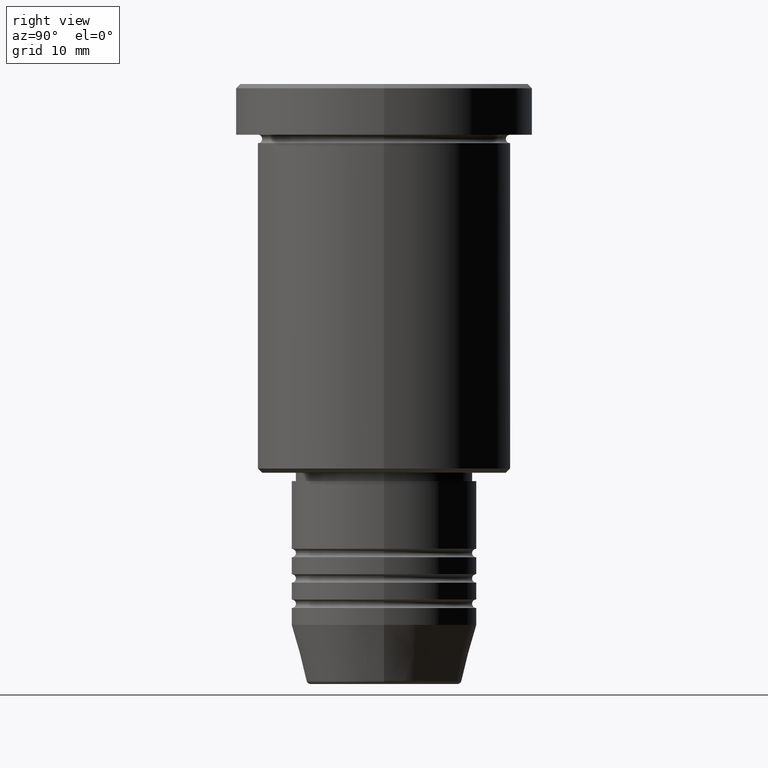
[diagram: clean part render]
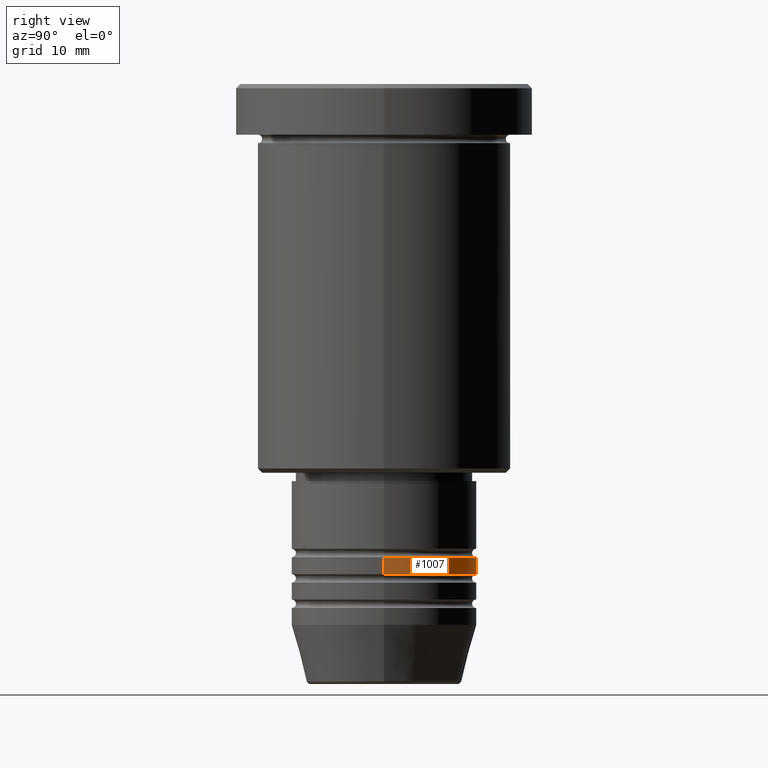
[diagram: same view with one face highlighted and labeled with its STEP entity id]
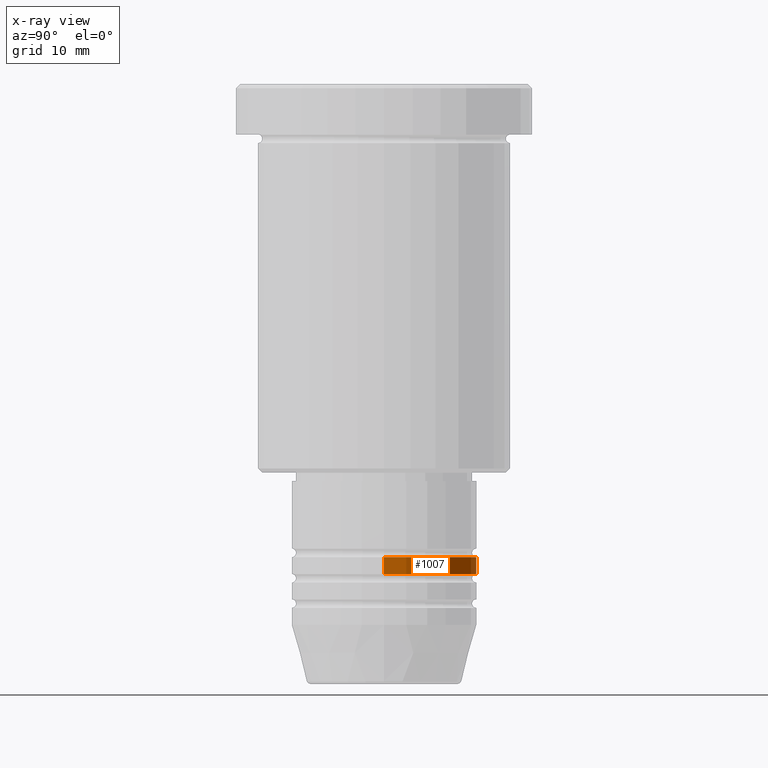
[diagram: x-ray of the same camera — body ghosted, the highlighted face saturated]
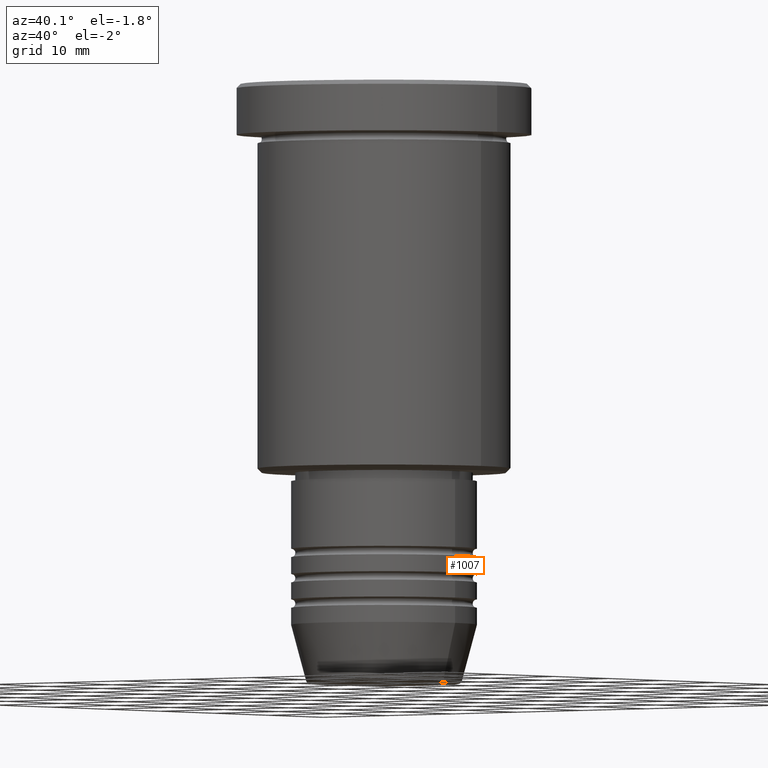
[diagram: same view with one face highlighted and labeled with its STEP entity id]
A machine part, right view. The second image highlights one B-rep face of the part: STEP entity #1007.
The next image is the same camera in x-ray: the body ghosted, the highlighted face saturated — about 0% of this face is hidden behind the body in this view.
A second angle (auxiliary view) of the same face is appended — the face is thin or edge-on in the first view.
In plain terms, the highlighted cylindrical surface (partial cylindrical patch) has radius 11 mm, axis along (-0, -0, 1).
Its self-contained STEP definition (entity closure, byte-faithful):
#42 = VERTEX_POINT ( 'NONE', #1144 ) ;
#68 = AXIS2_PLACEMENT_3D ( 'NONE', #437, #1069, #821 ) ;
#79 = EDGE_CURVE ( 'NONE', #772, #42, #1151, .T. ) ;
#81 = CARTESIAN_POINT ( 'NONE',  ( 0.000000000000000000, 0.000000000000000000, -55.99999999999997868 ) ) ;
#95 = DIRECTION ( 'NONE',  ( -0.000000000000000000, -0.000000000000000000, 1.000000000000000000 ) ) ;
#145 = ORIENTED_EDGE ( 'NONE', *, *, #899, .F. ) ;
#172 = CARTESIAN_POINT ( 'NONE',  ( 0.000000000000000000, 0.000000000000000000, 0.000000000000000000 ) ) ;
#291 = AXIS2_PLACEMENT_3D ( 'NONE', #172, #359, #1179 ) ;
#304 = CARTESIAN_POINT ( 'NONE',  ( 11.00000000000000000, 0.000000000000000000, -57.99999999999997868 ) ) ;
#352 = CIRCLE ( 'NONE', #812, 11.00000000000000000 ) ;
#359 = DIRECTION ( 'NONE',  ( -0.000000000000000000, -0.000000000000000000, 1.000000000000000000 ) ) ;
#401 = CARTESIAN_POINT ( 'NONE',  ( -11.00000000000000000, 1.347111479062088405E-15, -55.99999999999997868 ) ) ;
#437 = CARTESIAN_POINT ( 'NONE',  ( 0.000000000000000000, 0.000000000000000000, -57.99999999999997868 ) ) ;
#448 = VECTOR ( 'NONE', #95, 1000.000000000000000 ) ;
#459 = EDGE_CURVE ( 'NONE', #772, #922, #480, .T. ) ;
#480 = CIRCLE ( 'NONE', #68, 11.00000000000000000 ) ;
#487 = ORIENTED_EDGE ( 'NONE', *, *, #540, .T. ) ;
#537 = DIRECTION ( 'NONE',  ( 1.000000000000000000, 0.000000000000000000, 0.000000000000000000 ) ) ;
#540 = EDGE_CURVE ( 'NONE', #922, #728, #1180, .T. ) ;
#611 = EDGE_LOOP ( 'NONE', ( #949, #487, #145, #1110 ) ) ;
#629 = FACE_OUTER_BOUND ( 'NONE', #611, .T. ) ;
#728 = VERTEX_POINT ( 'NONE', #401 ) ;
#772 = VERTEX_POINT ( 'NONE', #304 ) ;
#812 = AXIS2_PLACEMENT_3D ( 'NONE', #81, #1080, #537 ) ;
#815 = CYLINDRICAL_SURFACE ( 'NONE', #291, 11.00000000000000000 ) ;
#821 = DIRECTION ( 'NONE',  ( 1.000000000000000000, 0.000000000000000000, 0.000000000000000000 ) ) ;
#824 = VECTOR ( 'NONE', #975, 1000.000000000000000 ) ;
#899 = EDGE_CURVE ( 'NONE', #42, #728, #352, .T. ) ;
#919 = CARTESIAN_POINT ( 'NONE',  ( -11.00000000000000000, 1.347111479062088405E-15, 0.000000000000000000 ) ) ;
#922 = VERTEX_POINT ( 'NONE', #995 ) ;
#949 = ORIENTED_EDGE ( 'NONE', *, *, #459, .T. ) ;
#975 = DIRECTION ( 'NONE',  ( -0.000000000000000000, -0.000000000000000000, 1.000000000000000000 ) ) ;
#995 = CARTESIAN_POINT ( 'NONE',  ( -11.00000000000000000, 1.347111479062088405E-15, -57.99999999999997868 ) ) ;
#1007 = ADVANCED_FACE ( 'NONE', ( #629 ), #815, .T. ) ;
#1056 = CARTESIAN_POINT ( 'NONE',  ( 11.00000000000000000, 0.000000000000000000, 0.000000000000000000 ) ) ;
#1069 = DIRECTION ( 'NONE',  ( -0.000000000000000000, -0.000000000000000000, 1.000000000000000000 ) ) ;
#1080 = DIRECTION ( 'NONE',  ( -0.000000000000000000, -0.000000000000000000, 1.000000000000000000 ) ) ;
#1110 = ORIENTED_EDGE ( 'NONE', *, *, #79, .F. ) ;
#1144 = CARTESIAN_POINT ( 'NONE',  ( 11.00000000000000000, 0.000000000000000000, -55.99999999999997868 ) ) ;
#1151 = LINE ( 'NONE', #1056, #824 ) ;
#1179 = DIRECTION ( 'NONE',  ( 1.000000000000000000, 0.000000000000000000, 0.000000000000000000 ) ) ;
#1180 = LINE ( 'NONE', #919, #448 ) ;